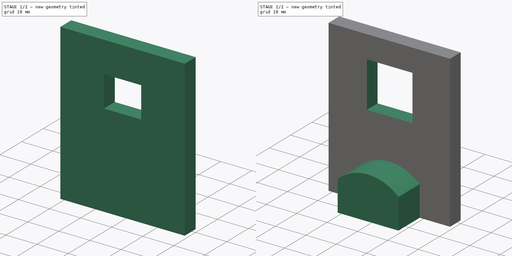
[diagram: build sequence overview — one tinted view per stage of 2, left to right]
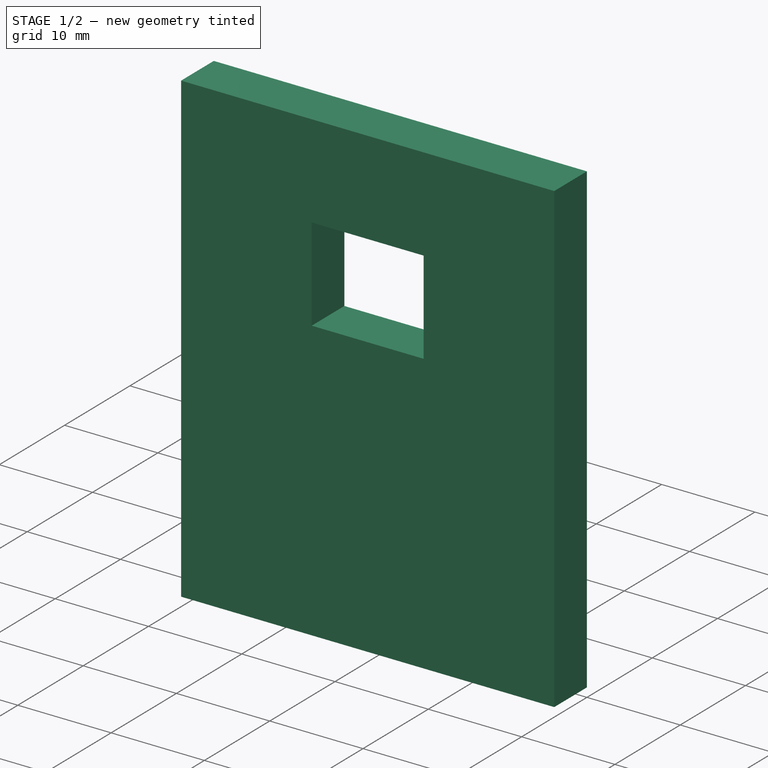
[diagram: stage 1 of 2 — iso view after this stage's code; geometry added in this stage tinted green]
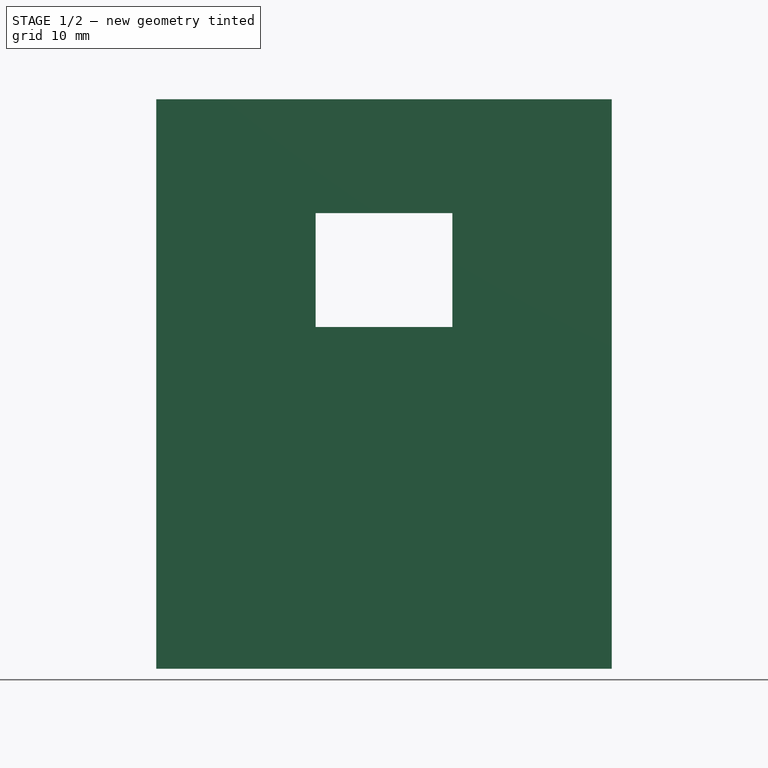
[diagram: stage 1 of 2 — front view after this stage's code; geometry added in this stage tinted green]
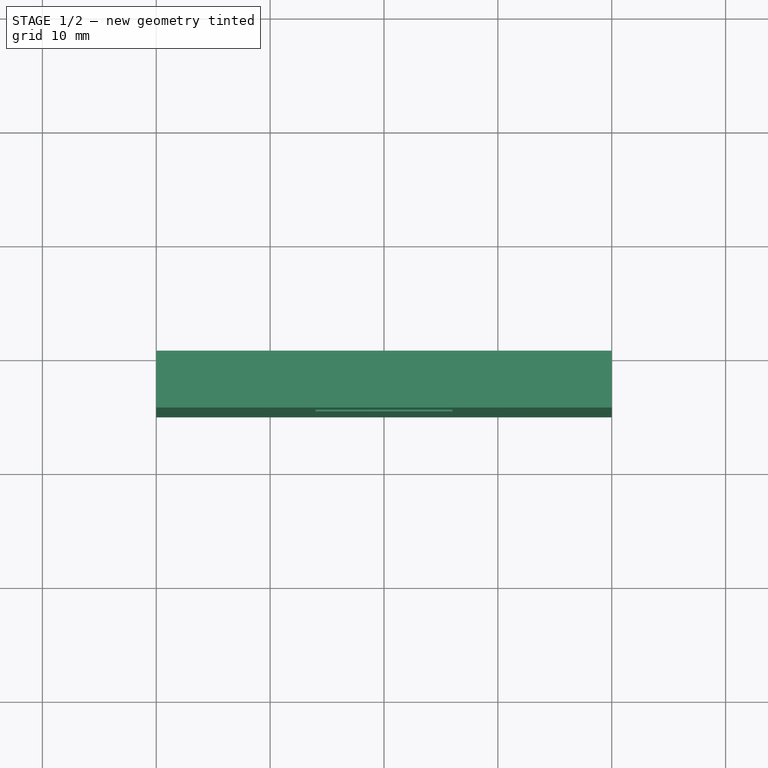
[diagram: stage 1 of 2 — top view after this stage's code; geometry added in this stage tinted green]
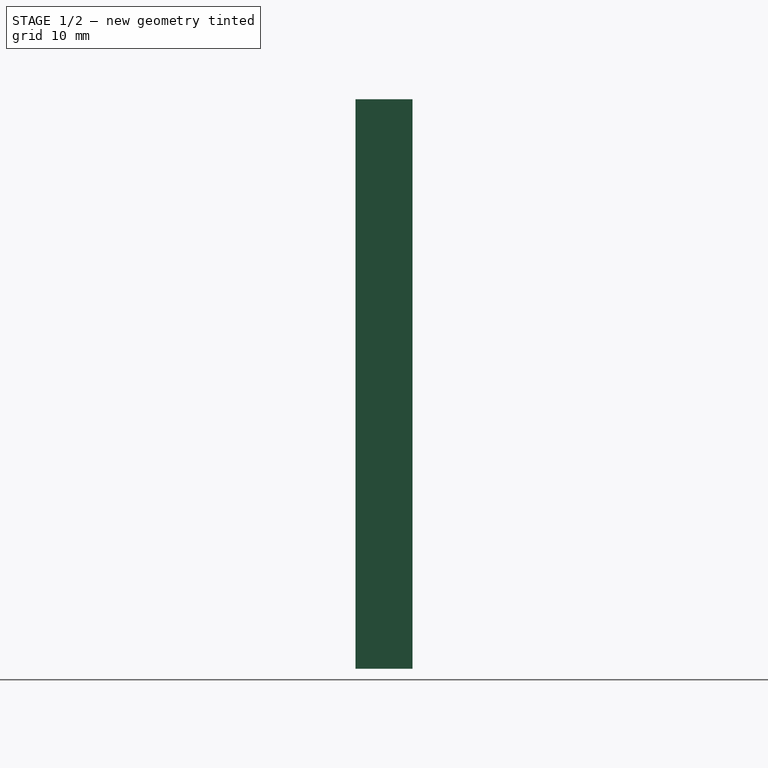
[diagram: stage 1 of 2 — right view after this stage's code; geometry added in this stage tinted green]
FCSTD DOCUMENT  (FreeCAD 0.20R29410 (Git))
Label: window_fixation_test
License: All rights reserved
LicenseURL: http://en.wikipedia.org/wiki/All_rights_reserved
objects: Sketcher::SketchObject×4, PartDesign::Pad×2, PartDesign::Pocket×2, PartDesign::Body×1
note: 13 computed .brp shape members not serialized (recipe doc carries the construction recipe); baked Part::Feature solids carry a one-line shape summary decoded from their .brp

FEATURE [Sketcher::SketchObject] Sketch
  FullyConstrained = true
  MapMode = 5
  Placement = pos=(0,0,0) rot=(1,0,0;1.5708rad)
  Support = -> [XZ_Plane001]
  sketch-geometry (4):
    g0: LineSegment StartX=0 StartY=0 StartZ=0 EndX=40 EndY=0 EndZ=0
    g1: LineSegment StartX=0 StartY=0 StartZ=0 EndX=0 EndY=50 EndZ=0
    g2: LineSegment StartX=0 StartY=50 StartZ=0 EndX=40 EndY=50 EndZ=0
    g3: LineSegment StartX=40 StartY=50 StartZ=0 EndX=40 EndY=0 EndZ=0
  constraints (11):
    c: Coincident(g0,g-1)
    c: Horizontal(g0)
    c: Distance(g0) = 40
    c: Coincident(g1,g0)
    c: Vertical(g1)
    c: Distance(g1) = 50
    c: Coincident(g2,g1)
    c: Horizontal(g2)
    c: Coincident(g3,g2)
    c: Coincident(g3,g0)
    c: Vertical(g3)
FEATURE [PartDesign::Pad] Pad
  Direction = (0,-1,-2e-16)
  Length = 5
  Length2 = 10
  Placement = pos=(0,0,0) rot=(1,0,0;1.5708rad)
  Profile = -> Sketch
  ReferenceAxis = -> Sketch [N_Axis]
  Type = 0
FEATURE [Sketcher::SketchObject] Sketch001
  FullyConstrained = true
  MapMode = 5
  Placement = pos=(0,-5,-1.1e-15) rot=(1,0,0;1.5708rad)
  Support = -> [Pad]
  sketch-geometry (4):
    g0: LineSegment StartX=14 StartY=30 StartZ=0 EndX=26 EndY=30 EndZ=0
    g1: LineSegment StartX=14 StartY=30 StartZ=0 EndX=14 EndY=40 EndZ=0
    g2: LineSegment StartX=14 StartY=40 StartZ=0 EndX=26 EndY=40 EndZ=0
    g3: LineSegment StartX=26 StartY=30 StartZ=0 EndX=26 EndY=40 EndZ=0
  constraints (12):
    c: Horizontal(g0)
    c: DistanceY(g-1,g0) = 30
    c: Coincident(g1,g0)
    c: Vertical(g1)
    c: Distance(g1) = 10
    c: Distance(g0) = 12
    c: Coincident(g2,g1)
    c: Horizontal(g2)
    c: Coincident(g3,g0)
    c: Coincident(g3,g2)
    c: Equal(g0,g2)
    c: DistanceX(g-1,g0) = 14
FEATURE [Sketcher::SketchObject] Sketch002
  FullyConstrained = true
  MapMode = 5
  Placement = pos=(0,0,0) rot=(-1,0,0;1.5708rad)
  sketch-geometry (4):
    g0: LineSegment StartX=12.6272 StartY=-27.5 StartZ=0 EndX=27.6272 EndY=-27.5 EndZ=0
    g1: LineSegment StartX=12.6272 StartY=-27.5 StartZ=0 EndX=12.6272 EndY=-42.5 EndZ=0
    g2: LineSegment StartX=12.6272 StartY=-42.5 StartZ=0 EndX=27.6272 EndY=-42.5 EndZ=0
    g3: LineSegment StartX=27.6272 StartY=-27.5 StartZ=0 EndX=27.6272 EndY=-42.5 EndZ=0
  constraints (12):
    c: Horizontal(g0)
    c: Distance(g0) = 15
    c: DistanceY(g0,g-1) = 27.5
    c: Coincident(g1,g0)
    c: Vertical(g1)
    c: Distance(g1) = 15
    c: Coincident(g2,g1)
    c: Horizontal(g2)
    c: Coincident(g3,g0)
    c: Coincident(g3,g2)
    c: Vertical(g3)
    c: Equal(g0,g2)
FEATURE [PartDesign::Pocket] Pocket
  BaseFeature = -> Pad
  Direction = (0,1,2e-16)
  Length = 5
  Length2 = 5
  Placement = pos=(0,0,0) rot=(1,0,0;1.5708rad)
  Profile = -> Sketch001
  ReferenceAxis = -> Sketch001 [N_Axis]
  Type = 1
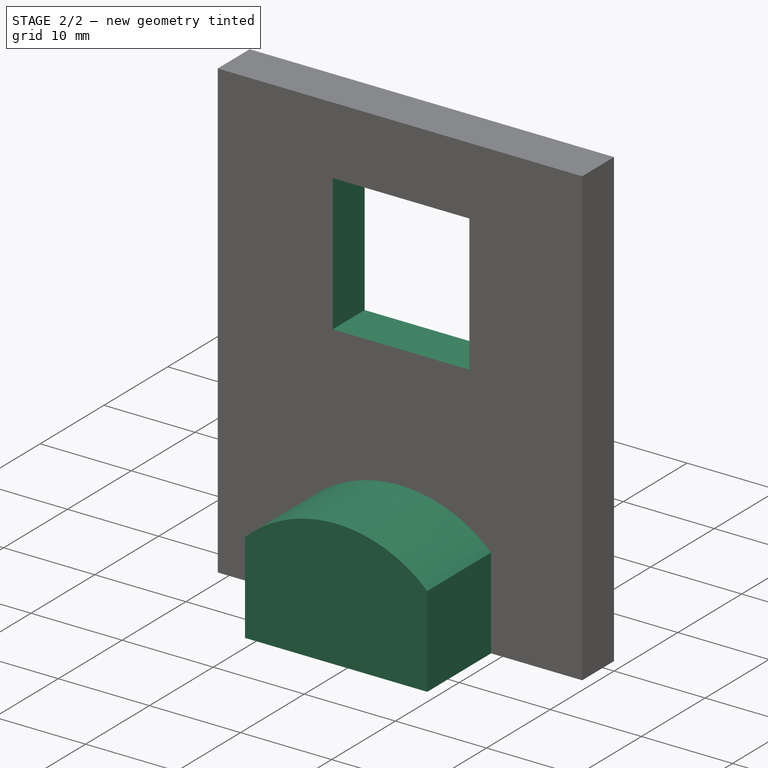
[diagram: stage 2 of 2 — iso view after this stage's code; geometry added in this stage tinted green]
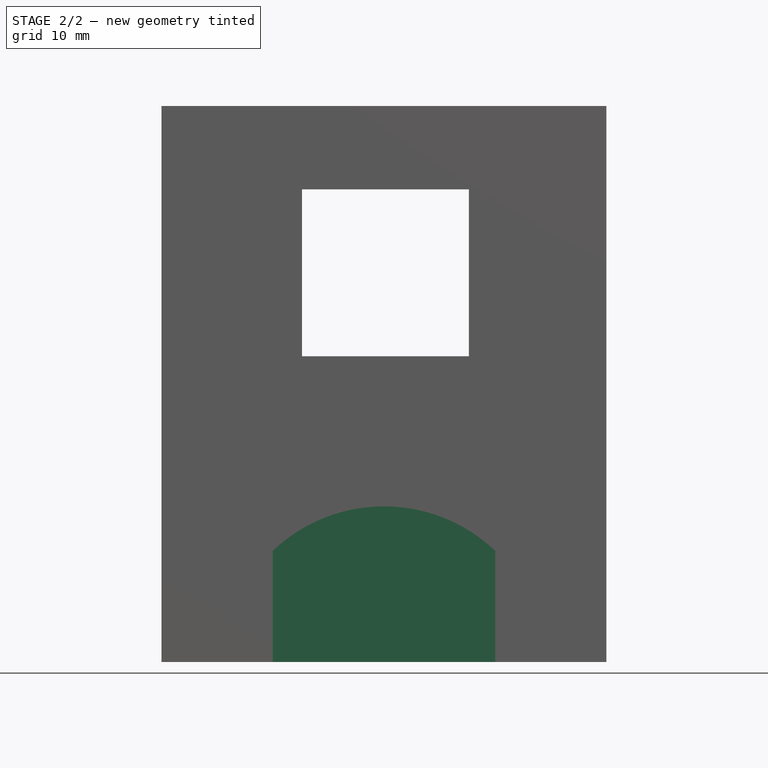
[diagram: stage 2 of 2 — front view after this stage's code; geometry added in this stage tinted green]
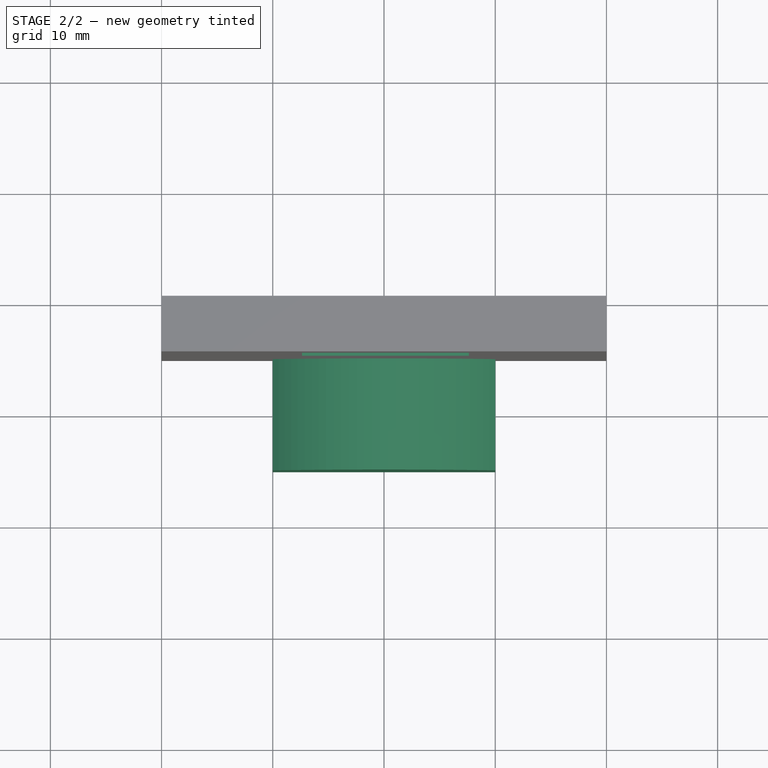
[diagram: stage 2 of 2 — top view after this stage's code; geometry added in this stage tinted green]
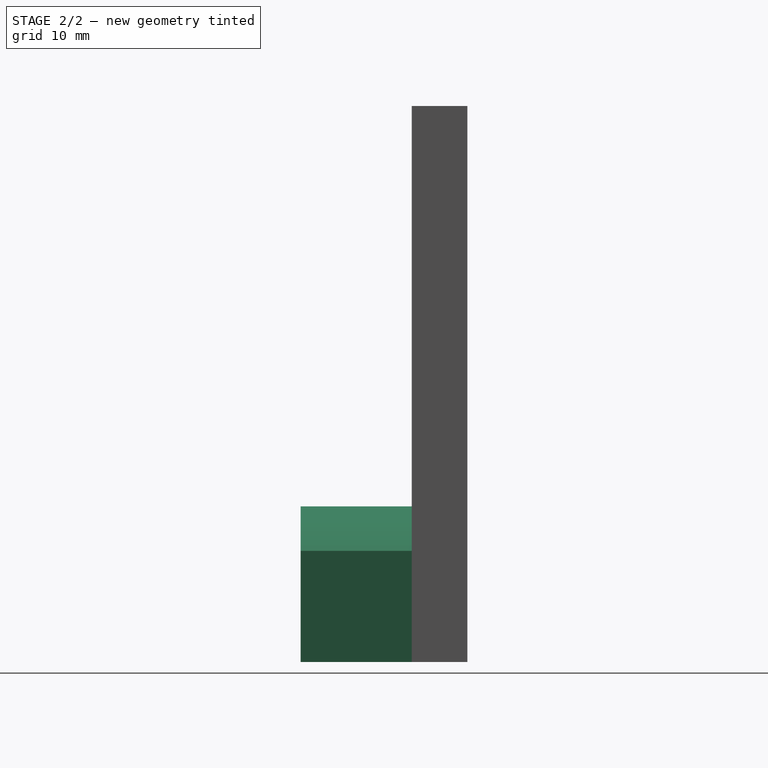
[diagram: stage 2 of 2 — right view after this stage's code; geometry added in this stage tinted green]
FEATURE [PartDesign::Pocket] Pocket001
  BaseFeature = -> Pocket
  Direction = (0,-1,-2e-16)
  Length = 18
  Length2 = 5
  Placement = pos=(0,0,0) rot=(1,0,0;1.5708rad)
  Profile = -> Sketch002
  ReferenceAxis = -> Sketch002 [N_Axis]
  Type = 0
FEATURE [Sketcher::SketchObject] Sketch003
  FullyConstrained = false
  MapMode = 5
  Placement = pos=(0,-5,-1.1e-15) rot=(1,0,0;1.5708rad)
  Support = -> [Pocket001]
  sketch-geometry (5):
    g0: LineSegment StartX=10 StartY=0 StartZ=0 EndX=30 EndY=0 EndZ=0
    g1: LineSegment StartX=10 StartY=0 StartZ=0 EndX=10 EndY=10 EndZ=0
    g2: LineSegment StartX=30 StartY=0 StartZ=0 EndX=30 EndY=10 EndZ=0
    g3: ArcOfCircle CenterX=20 CenterY=-0.499997 CenterZ=0 NormalX=0 NormalY=0 NormalZ=1 AngleXU=0 Radius=14.5 StartAngle=0.809783 EndAngle=2.33181
    g4: GeomPoint X=19.9952 Y=14 Z=0
  constraints (14):
    c: PointOnObject(g0,g-1)
    c: PointOnObject(g0,g-1)
    c: Distance(g0) = 20
    c: DistanceX(g-1,g0) = 10
    c: Coincident(g1,g0)
    c: Vertical(g1)
    c: Distance(g1) = 10
    c: Coincident(g2,g0)
    c: Vertical(g2)
    c: Equal(g1,g2)
    c: Coincident(g3,g1)
    c: Coincident(g3,g2)
    c: PointOnObject(g4,g3)
    c: DistanceY(g-1,g4) = 14
FEATURE [PartDesign::Pad] Pad001
  BaseFeature = -> Pocket001
  Direction = (0,-1,-2e-16)
  Length = 10
  Length2 = 10
  Placement = pos=(0,0,0) rot=(1,0,0;1.5708rad)
  Profile = -> Sketch003
  ReferenceAxis = -> Sketch003 [N_Axis]
  Type = 0
FEATURE [PartDesign::Body] Body
  Group = -> [Sketch,Pad,Sketch001,Sketch002,Pocket,Pocket001,Sketch003,Pad001]
  Origin = -> Origin001
  Tip = -> Pad001
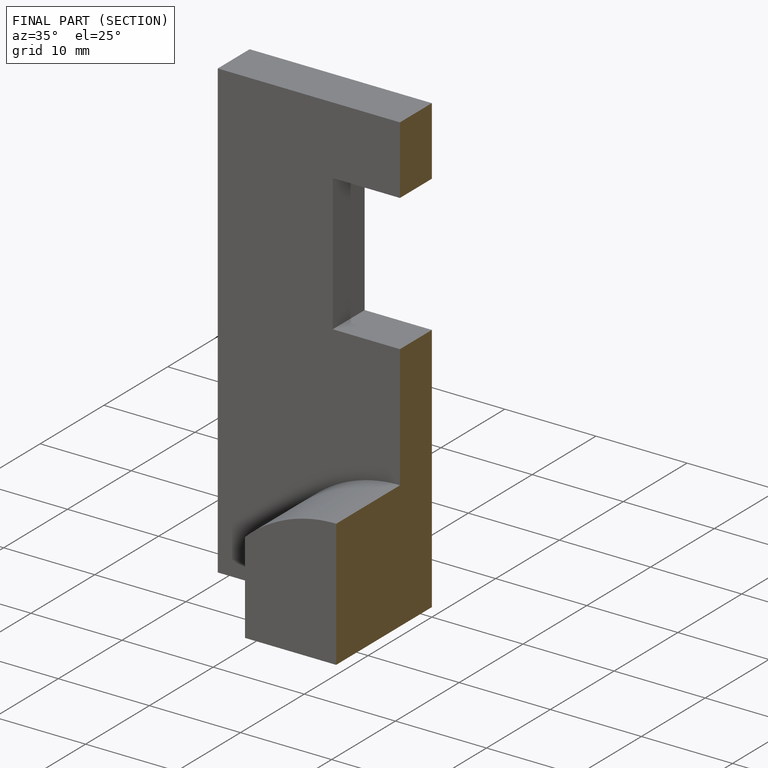
[diagram: finished part — half-section view (interior)]
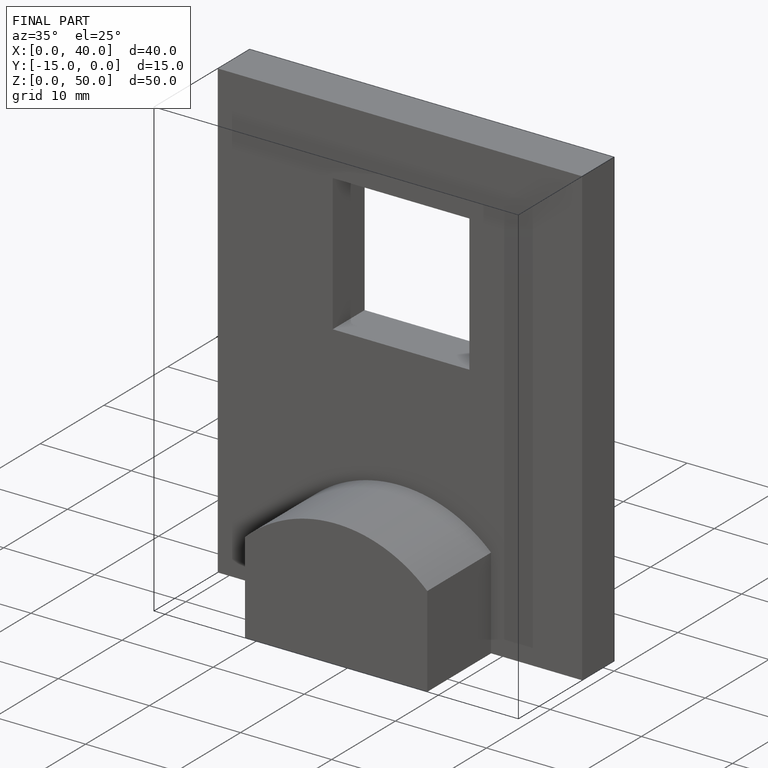
[diagram: finished part — iso view with bounding-box wireframe]
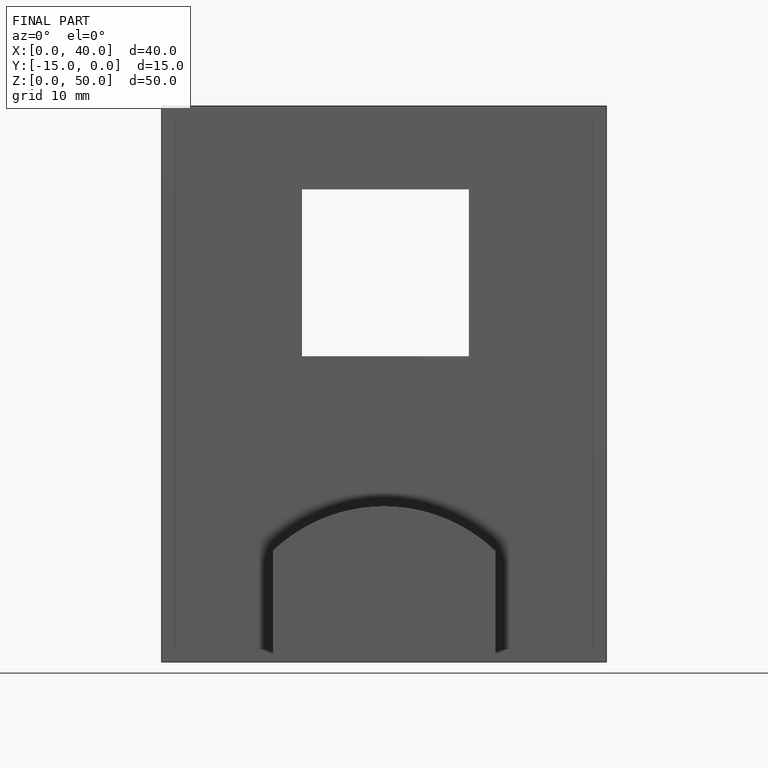
[diagram: finished part — front view with bounding-box wireframe]
